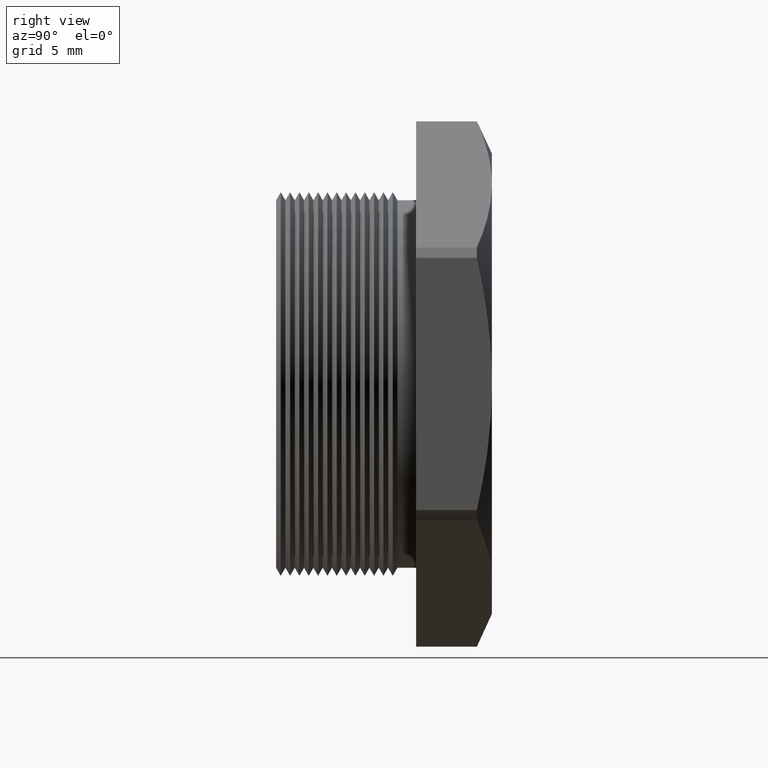
[diagram: clean part render]
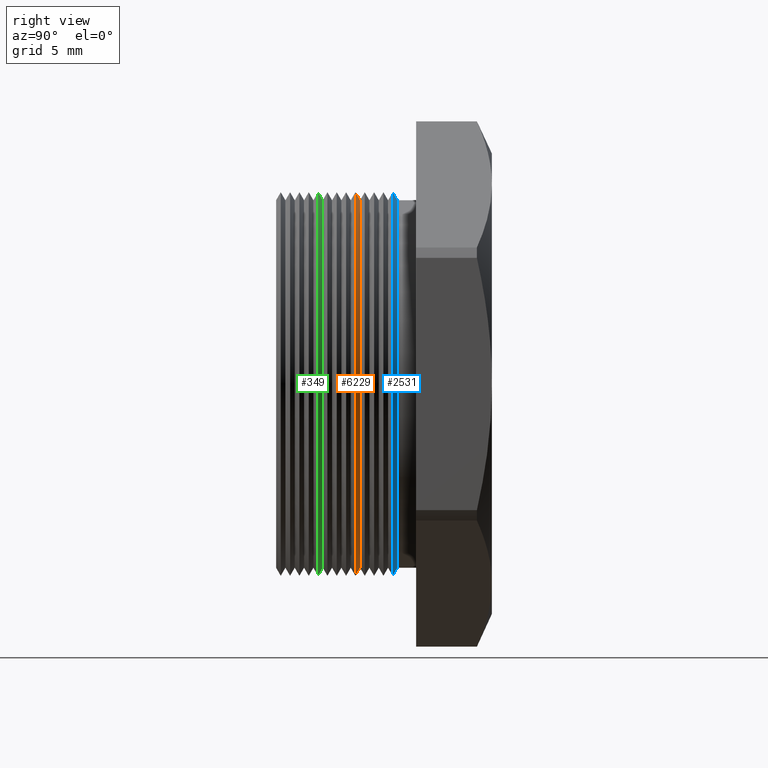
[diagram: same view with three faces highlighted in distinct colors, each labeled with its STEP entity id]
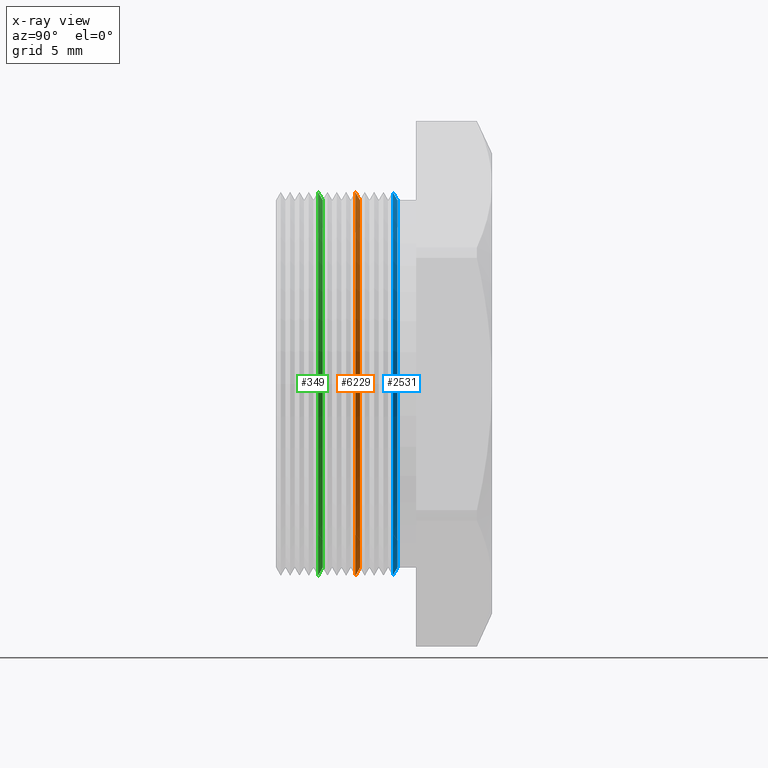
[diagram: x-ray of the same camera — body ghosted, the three highlighted faces saturated]
A machine part, right view with three faces highlighted in distinct colors.
The next image is the same camera in x-ray (body ghosted, the three faces saturated) — at least one of them is partly hidden behind the body in this view.
Their STEP definitions:

[orange] entity #6229 — the highlighted conical surface has half-angle 60 deg.
#6000 = DIRECTION ( 'NONE',  ( 1.060575238724907500E-016, -0.4999999999999991100, 0.8660254037844391500 ) ) ;
#6001 = VECTOR ( 'NONE', #6000, 39.37007874015748100 ) ;
#6002 = CARTESIAN_POINT ( 'NONE',  ( 3.857637417314162700E-017, 0.1815072448100088800, 0.3150000000000000000 ) ) ;
#6003 = LINE ( 'NONE', #6002, #6001 ) ;
#6036 = DIRECTION ( 'NONE',  ( 0.0000000000000000000, 0.0000000000000000000, -1.000000000000000000 ) ) ;
#6037 = DIRECTION ( 'NONE',  ( 0.0000000000000000000, -1.000000000000000000, 0.0000000000000000000 ) ) ;
#6038 = CARTESIAN_POINT ( 'NONE',  ( 0.0000000000000000000, 0.1815072448100088800, 0.0000000000000000000 ) ) ;
#6039 = AXIS2_PLACEMENT_3D ( 'NONE', #6038, #6037, #6036 ) ;
#6040 = CIRCLE ( 'NONE', #6039, 0.3150000000000000000 ) ;
#6041 = DIRECTION ( 'NONE',  ( 0.0000000000000000000, 0.0000000000000000000, -1.000000000000000000 ) ) ;
#6042 = DIRECTION ( 'NONE',  ( 0.0000000000000000000, -1.000000000000000000, 0.0000000000000000000 ) ) ;
#6043 = AXIS2_PLACEMENT_3D ( 'NONE', #6045, #6042, #6041 ) ;
#6044 = CONICAL_SURFACE ( 'NONE', #6043, 0.3150000000000000000, 1.047197551196598700 ) ;
#6045 = CARTESIAN_POINT ( 'NONE',  ( 0.0000000000000000000, 0.1815072448100088800, 0.0000000000000000000 ) ) ;
#6046 = FACE_OUTER_BOUND ( 'NONE', #6228, .T. ) ;
#6047 = CARTESIAN_POINT ( 'NONE',  ( 0.0000000000000000000, 0.1815072448100088800, -0.3150000000000000000 ) ) ;
#6053 = CARTESIAN_POINT ( 'NONE',  ( 3.857637417314162700E-017, 0.1815072448100088800, 0.3150000000000000000 ) ) ;
#6062 = DIRECTION ( 'NONE',  ( 0.0000000000000000000, -0.4999999999999991100, -0.8660254037844391500 ) ) ;
#6063 = VECTOR ( 'NONE', #6062, 39.37007874015748100 ) ;
#6064 = CARTESIAN_POINT ( 'NONE',  ( 0.0000000000000000000, 0.1815072448100088800, -0.3150000000000000000 ) ) ;
#6065 = LINE ( 'NONE', #6064, #6063 ) ;
#6071 = CARTESIAN_POINT ( 'NONE',  ( 4.026318816969966200E-017, 0.1735548905829479600, 0.3287738815610546400 ) ) ;
#6082 = CARTESIAN_POINT ( 'NONE',  ( 0.0000000000000000000, 0.1735548905829479600, -0.3287738815610546400 ) ) ;
#6089 = DIRECTION ( 'NONE',  ( 0.0000000000000000000, 0.0000000000000000000, 1.000000000000000000 ) ) ;
#6090 = DIRECTION ( 'NONE',  ( -0.0000000000000000000, 1.000000000000000000, -0.0000000000000000000 ) ) ;
#6091 = CARTESIAN_POINT ( 'NONE',  ( 0.0000000000000000000, 0.1735548905829479600, 0.0000000000000000000 ) ) ;
#6092 = AXIS2_PLACEMENT_3D ( 'NONE', #6091, #6090, #6089 ) ;
#6093 = CIRCLE ( 'NONE', #6092, 0.3287738815610546400 ) ;
#6217 = ORIENTED_EDGE ( 'NONE', *, *, #6221, .T. ) ;
#6221 = EDGE_CURVE ( 'NONE', #6225, #6247, #6003, .T. ) ;
#6225 = VERTEX_POINT ( 'NONE', #6053 ) ;
#6226 = ORIENTED_EDGE ( 'NONE', *, *, #6230, .T. ) ;
#6227 = VERTEX_POINT ( 'NONE', #6047 ) ;
#6228 = EDGE_LOOP ( 'NONE', ( #6226, #6217, #6253, #6248 ) ) ;
#6229 = ADVANCED_FACE ( 'NONE', ( #6046 ), #6044, .T. ) ;
#6230 = EDGE_CURVE ( 'NONE', #6227, #6225, #6040, .T. ) ;
#6235 = EDGE_CURVE ( 'NONE', #6247, #6242, #6093, .T. ) ;
#6242 = VERTEX_POINT ( 'NONE', #6082 ) ;
#6247 = VERTEX_POINT ( 'NONE', #6071 ) ;
#6248 = ORIENTED_EDGE ( 'NONE', *, *, #6252, .F. ) ;
#6252 = EDGE_CURVE ( 'NONE', #6227, #6242, #6065, .T. ) ;
#6253 = ORIENTED_EDGE ( 'NONE', *, *, #6235, .T. ) ;

[blue] entity #2531 — the highlighted conical surface has half-angle 60 deg.
#2507 = VERTEX_POINT ( 'NONE', #5555 ) ;
#2527 = EDGE_CURVE ( 'NONE', #2541, #2553, #5573, .T. ) ;
#2528 = ORIENTED_EDGE ( 'NONE', *, *, #2570, .F. ) ;
#2529 = ORIENTED_EDGE ( 'NONE', *, *, #2566, .T. ) ;
#2530 = ORIENTED_EDGE ( 'NONE', *, *, #2533, .T. ) ;
#2531 = ADVANCED_FACE ( 'NONE', ( #5569 ), #5567, .T. ) ;
#2533 = EDGE_CURVE ( 'NONE', #2545, #2541, #5568, .T. ) ;
#2538 = EDGE_LOOP ( 'NONE', ( #2530, #2543, #2529, #2528 ) ) ;
#2541 = VERTEX_POINT ( 'NONE', #5612 ) ;
#2543 = ORIENTED_EDGE ( 'NONE', *, *, #2527, .T. ) ;
#2545 = VERTEX_POINT ( 'NONE', #5602 ) ;
#2553 = VERTEX_POINT ( 'NONE', #5648 ) ;
#2566 = EDGE_CURVE ( 'NONE', #2553, #2507, #5625, .T. ) ;
#2570 = EDGE_CURVE ( 'NONE', #2545, #2507, #5682, .T. ) ;
#5555 = CARTESIAN_POINT ( 'NONE',  ( 0.0000000000000000000, 0.2375548905829479900, -0.3287738815610546400 ) ) ;
#5563 = DIRECTION ( 'NONE',  ( 0.0000000000000000000, 0.0000000000000000000, -1.000000000000000000 ) ) ;
#5564 = DIRECTION ( 'NONE',  ( 0.0000000000000000000, -1.000000000000000000, 0.0000000000000000000 ) ) ;
#5565 = CARTESIAN_POINT ( 'NONE',  ( 0.0000000000000000000, 0.2455072448100089100, 0.0000000000000000000 ) ) ;
#5566 = AXIS2_PLACEMENT_3D ( 'NONE', #5565, #5564, #5563 ) ;
#5567 = CONICAL_SURFACE ( 'NONE', #5566, 0.3150000000000000000, 1.047197551196598700 ) ;
#5568 = CIRCLE ( 'NONE', #5624, 0.3150000000000000000 ) ;
#5569 = FACE_OUTER_BOUND ( 'NONE', #2538, .T. ) ;
#5570 = DIRECTION ( 'NONE',  ( 1.060575238724907500E-016, -0.4999999999999991100, 0.8660254037844391500 ) ) ;
#5571 = VECTOR ( 'NONE', #5570, 39.37007874015748100 ) ;
#5572 = CARTESIAN_POINT ( 'NONE',  ( 3.857637417314162700E-017, 0.2455072448100089100, 0.3150000000000000000 ) ) ;
#5573 = LINE ( 'NONE', #5572, #5571 ) ;
#5602 = CARTESIAN_POINT ( 'NONE',  ( 0.0000000000000000000, 0.2455072448100089100, -0.3150000000000000000 ) ) ;
#5612 = CARTESIAN_POINT ( 'NONE',  ( 3.857637417314162700E-017, 0.2455072448100089100, 0.3150000000000000000 ) ) ;
#5621 = DIRECTION ( 'NONE',  ( 0.0000000000000000000, 0.0000000000000000000, -1.000000000000000000 ) ) ;
#5622 = DIRECTION ( 'NONE',  ( 0.0000000000000000000, -1.000000000000000000, 0.0000000000000000000 ) ) ;
#5623 = CARTESIAN_POINT ( 'NONE',  ( 0.0000000000000000000, 0.2455072448100089100, 0.0000000000000000000 ) ) ;
#5624 = AXIS2_PLACEMENT_3D ( 'NONE', #5623, #5622, #5621 ) ;
#5625 = CIRCLE ( 'NONE', #5686, 0.3287738815610546400 ) ;
#5648 = CARTESIAN_POINT ( 'NONE',  ( 4.026318816969966200E-017, 0.2375548905829479900, 0.3287738815610546400 ) ) ;
#5679 = DIRECTION ( 'NONE',  ( 0.0000000000000000000, -0.4999999999999991100, -0.8660254037844391500 ) ) ;
#5680 = VECTOR ( 'NONE', #5679, 39.37007874015748100 ) ;
#5681 = CARTESIAN_POINT ( 'NONE',  ( 0.0000000000000000000, 0.2455072448100089100, -0.3150000000000000000 ) ) ;
#5682 = LINE ( 'NONE', #5681, #5680 ) ;
#5683 = DIRECTION ( 'NONE',  ( 0.0000000000000000000, 0.0000000000000000000, 1.000000000000000000 ) ) ;
#5684 = DIRECTION ( 'NONE',  ( -0.0000000000000000000, 1.000000000000000000, -0.0000000000000000000 ) ) ;
#5685 = CARTESIAN_POINT ( 'NONE',  ( 0.0000000000000000000, 0.2375548905829479900, 0.0000000000000000000 ) ) ;
#5686 = AXIS2_PLACEMENT_3D ( 'NONE', #5685, #5684, #5683 ) ;

[green] entity #349 — the highlighted conical surface has half-angle 60 deg.
#30 = EDGE_CURVE ( 'NONE', #105, #342, #1966, .T. ) ;
#31 = ORIENTED_EDGE ( 'NONE', *, *, #30, .F. ) ;
#32 = ORIENTED_EDGE ( 'NONE', *, *, #345, .T. ) ;
#33 = EDGE_CURVE ( 'NONE', #35, #346, #1956, .T. ) ;
#34 = ORIENTED_EDGE ( 'NONE', *, *, #33, .T. ) ;
#35 = VERTEX_POINT ( 'NONE', #1952 ) ;
#105 = VERTEX_POINT ( 'NONE', #2097 ) ;
#342 = VERTEX_POINT ( 'NONE', #2764 ) ;
#345 = EDGE_CURVE ( 'NONE', #346, #342, #2763, .T. ) ;
#346 = VERTEX_POINT ( 'NONE', #2821 ) ;
#349 = ADVANCED_FACE ( 'NONE', ( #2816 ), #2814, .T. ) ;
#350 = EDGE_LOOP ( 'NONE', ( #351, #34, #32, #31 ) ) ;
#351 = ORIENTED_EDGE ( 'NONE', *, *, #352, .T. ) ;
#352 = EDGE_CURVE ( 'NONE', #105, #35, #2815, .T. ) ;
#1952 = CARTESIAN_POINT ( 'NONE',  ( 3.857637417314162700E-017, 0.1175072448100088900, 0.3150000000000000000 ) ) ;
#1953 = DIRECTION ( 'NONE',  ( 1.060575238724907500E-016, -0.4999999999999991100, 0.8660254037844391500 ) ) ;
#1954 = VECTOR ( 'NONE', #1953, 39.37007874015748100 ) ;
#1955 = CARTESIAN_POINT ( 'NONE',  ( 3.857637417314162700E-017, 0.1175072448100088900, 0.3150000000000000000 ) ) ;
#1956 = LINE ( 'NONE', #1955, #1954 ) ;
#1957 = DIRECTION ( 'NONE',  ( 0.0000000000000000000, -0.4999999999999991100, -0.8660254037844391500 ) ) ;
#1958 = VECTOR ( 'NONE', #1957, 39.37007874015748100 ) ;
#1959 = CARTESIAN_POINT ( 'NONE',  ( 0.0000000000000000000, 0.1175072448100088900, -0.3150000000000000000 ) ) ;
#1966 = LINE ( 'NONE', #1959, #1958 ) ;
#2097 = CARTESIAN_POINT ( 'NONE',  ( 0.0000000000000000000, 0.1175072448100088900, -0.3150000000000000000 ) ) ;
#2759 = DIRECTION ( 'NONE',  ( 0.0000000000000000000, 0.0000000000000000000, 1.000000000000000000 ) ) ;
#2760 = DIRECTION ( 'NONE',  ( -0.0000000000000000000, 1.000000000000000000, -0.0000000000000000000 ) ) ;
#2761 = CARTESIAN_POINT ( 'NONE',  ( 0.0000000000000000000, 0.1095548905829479700, 0.0000000000000000000 ) ) ;
#2762 = AXIS2_PLACEMENT_3D ( 'NONE', #2761, #2760, #2759 ) ;
#2763 = CIRCLE ( 'NONE', #2762, 0.3287738815610546400 ) ;
#2764 = CARTESIAN_POINT ( 'NONE',  ( 0.0000000000000000000, 0.1095548905829479700, -0.3287738815610546400 ) ) ;
#2806 = DIRECTION ( 'NONE',  ( 0.0000000000000000000, 0.0000000000000000000, -1.000000000000000000 ) ) ;
#2807 = DIRECTION ( 'NONE',  ( 0.0000000000000000000, -1.000000000000000000, 0.0000000000000000000 ) ) ;
#2808 = CARTESIAN_POINT ( 'NONE',  ( 0.0000000000000000000, 0.1175072448100088900, 0.0000000000000000000 ) ) ;
#2809 = AXIS2_PLACEMENT_3D ( 'NONE', #2808, #2807, #2806 ) ;
#2810 = DIRECTION ( 'NONE',  ( 0.0000000000000000000, 0.0000000000000000000, -1.000000000000000000 ) ) ;
#2811 = DIRECTION ( 'NONE',  ( 0.0000000000000000000, -1.000000000000000000, 0.0000000000000000000 ) ) ;
#2812 = CARTESIAN_POINT ( 'NONE',  ( 0.0000000000000000000, 0.1175072448100088900, 0.0000000000000000000 ) ) ;
#2813 = AXIS2_PLACEMENT_3D ( 'NONE', #2812, #2811, #2810 ) ;
#2814 = CONICAL_SURFACE ( 'NONE', #2813, 0.3150000000000000000, 1.047197551196598700 ) ;
#2815 = CIRCLE ( 'NONE', #2809, 0.3150000000000000000 ) ;
#2816 = FACE_OUTER_BOUND ( 'NONE', #350, .T. ) ;
#2821 = CARTESIAN_POINT ( 'NONE',  ( 4.026318816969966200E-017, 0.1095548905829479700, 0.3287738815610546400 ) ) ;